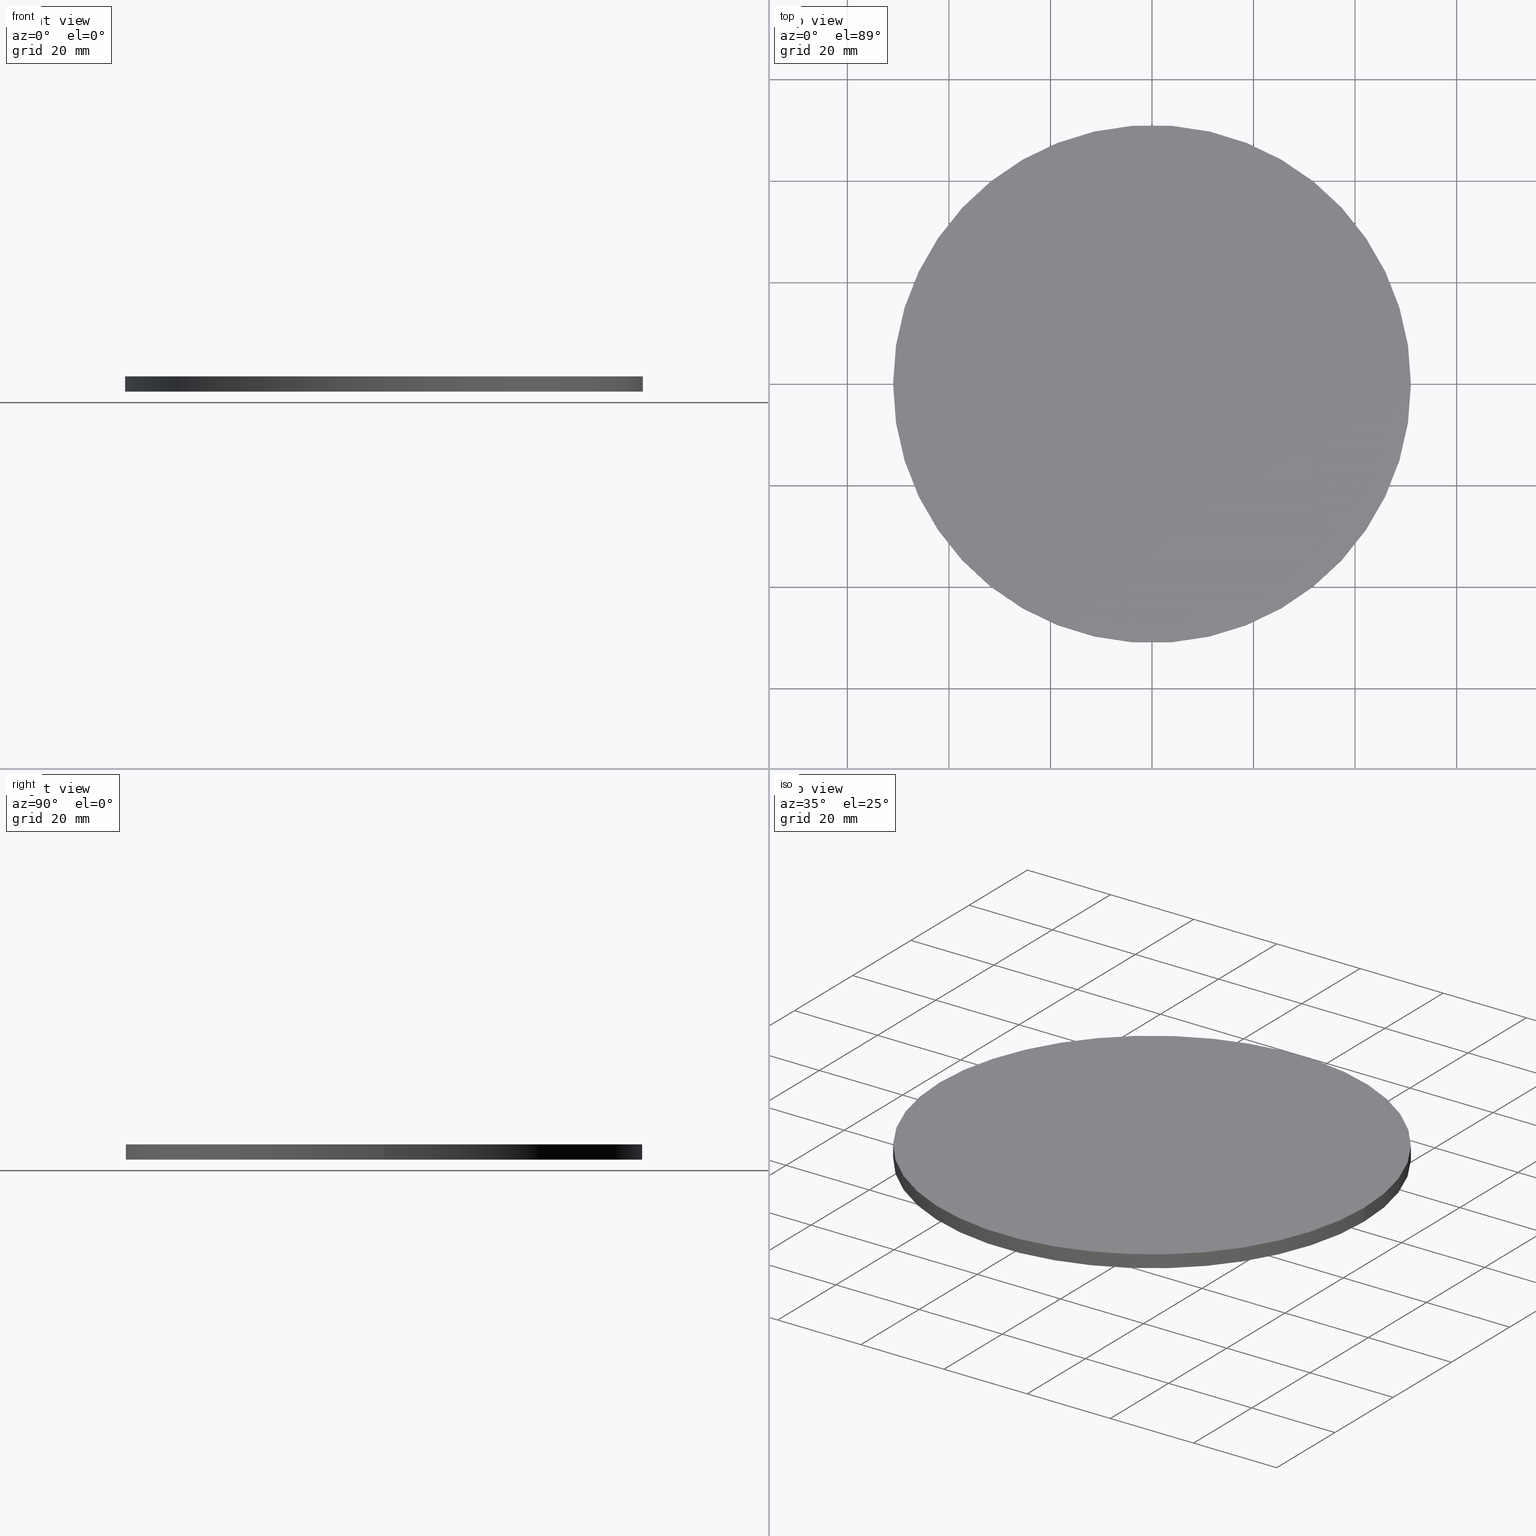
[diagram: canonical four-view strip — front | top / right | iso, engineering-drawing reading convention]
A machine part, canonical four-view strip (front | top / right | iso — engineering-drawing reading convention). The complete STEP part file that produces these views, byte-faithful:
ISO-10303-21;
HEADER;
/* Generated by software containing ST-Developer
 * from STEP Tools, Inc. (www.steptools.com) 
 */

FILE_DESCRIPTION(
/* description */ ('ACC.PIEDE'),
/* implementation_level */ '2;1');

FILE_NAME(
/* name */ 
'C:\\Users\\tecnico7\\Desktop\\NUOVI DISEGNI 3D\\CPDAA0000012.stp',
/* time_stamp */ '2022-11-22T15:31:47+01:00',
/* author */ ('tecnico7'),
/* organization */ (''),
/* preprocessor_version */ 'ST-DEVELOPER v18.1',
/* originating_system */ 'Autodesk Inventor 2022',
/* authorisation */ '');

FILE_SCHEMA (('AUTOMOTIVE_DESIGN { 1 0 10303 214 3 1 1 }'));
ENDSEC;

DATA;
#10=MECHANICAL_DESIGN_GEOMETRIC_PRESENTATION_REPRESENTATION('',(#13),#95);
#11=SHAPE_REPRESENTATION_RELATIONSHIP('SRR','None',#102,#12);
#12=ADVANCED_BREP_SHAPE_REPRESENTATION('',(#14),#94);
#13=STYLED_ITEM('',(#111),#14);
#14=MANIFOLD_SOLID_BREP('Solido1',#42);
#15=PLANE('',#68);
#16=PLANE('',#69);
#17=FACE_OUTER_BOUND('',#20,.T.);
#18=FACE_OUTER_BOUND('',#21,.T.);
#19=FACE_OUTER_BOUND('',#22,.T.);
#20=EDGE_LOOP('',(#32,#33,#34,#35));
#21=EDGE_LOOP('',(#36));
#22=EDGE_LOOP('',(#37));
#23=LINE('',#88,#24);
#24=VECTOR('',#76,51.);
#25=CIRCLE('',#66,51.);
#26=CIRCLE('',#67,51.);
#27=VERTEX_POINT('',#85);
#28=VERTEX_POINT('',#87);
#29=EDGE_CURVE('',#27,#27,#25,.T.);
#30=EDGE_CURVE('',#27,#28,#23,.T.);
#31=EDGE_CURVE('',#28,#28,#26,.T.);
#32=ORIENTED_EDGE('',*,*,#29,.F.);
#33=ORIENTED_EDGE('',*,*,#30,.T.);
#34=ORIENTED_EDGE('',*,*,#31,.F.);
#35=ORIENTED_EDGE('',*,*,#30,.F.);
#36=ORIENTED_EDGE('',*,*,#31,.T.);
#37=ORIENTED_EDGE('',*,*,#29,.T.);
#38=CYLINDRICAL_SURFACE('',#65,51.);
#39=ADVANCED_FACE('',(#17),#38,.T.);
#40=ADVANCED_FACE('',(#18),#15,.F.);
#41=ADVANCED_FACE('',(#19),#16,.T.);
#42=CLOSED_SHELL('',(#39,#40,#41));
#43=DERIVED_UNIT_ELEMENT(#46,1.);
#44=DERIVED_UNIT_ELEMENT(#97,-3.);
#45=DIMENSIONAL_EXPONENTS(1.,0.,0.,0.,0.,0.,0.);
#46=(
CONVERSION_BASED_UNIT('gram',#48)
MASS_UNIT()
NAMED_UNIT(#45)
);
#47=(
MASS_UNIT()
NAMED_UNIT(*)
SI_UNIT(.KILO.,.GRAM.)
);
#48=MASS_MEASURE_WITH_UNIT(MASS_MEASURE(0.001),#47);
#49=DERIVED_UNIT((#43,#44));
#50=MEASURE_REPRESENTATION_ITEM('density measure',
POSITIVE_RATIO_MEASURE(1.),#49);
#51=PROPERTY_DEFINITION_REPRESENTATION(#56,#53);
#52=PROPERTY_DEFINITION_REPRESENTATION(#57,#54);
#53=REPRESENTATION('material name',(#55),#94);
#54=REPRESENTATION('density',(#50),#94);
#55=DESCRIPTIVE_REPRESENTATION_ITEM('Generico','Generico');
#56=PROPERTY_DEFINITION('material property','material name',#104);
#57=PROPERTY_DEFINITION('material property','density of part',#104);
#58=DATE_TIME_ROLE('creation_date');
#59=APPLIED_DATE_AND_TIME_ASSIGNMENT(#60,#58,(#104));
#60=DATE_AND_TIME(#61,#62);
#61=CALENDAR_DATE(2015,25,11);
#62=LOCAL_TIME(0,0,0.,#63);
#63=COORDINATED_UNIVERSAL_TIME_OFFSET(0,0,.BEHIND.);
#64=AXIS2_PLACEMENT_3D('placement',#83,#70,#71);
#65=AXIS2_PLACEMENT_3D('',#84,#72,#73);
#66=AXIS2_PLACEMENT_3D('',#86,#74,#75);
#67=AXIS2_PLACEMENT_3D('',#89,#77,#78);
#68=AXIS2_PLACEMENT_3D('',#90,#79,#80);
#69=AXIS2_PLACEMENT_3D('',#91,#81,#82);
#70=DIRECTION('axis',(0.,0.,1.));
#71=DIRECTION('refdir',(1.,0.,0.));
#72=DIRECTION('center_axis',(0.,0.,1.));
#73=DIRECTION('ref_axis',(-1.,0.,0.));
#74=DIRECTION('center_axis',(0.,0.,1.));
#75=DIRECTION('ref_axis',(-1.,0.,0.));
#76=DIRECTION('',(0.,0.,-1.));
#77=DIRECTION('center_axis',(0.,0.,-1.));
#78=DIRECTION('ref_axis',(-1.,0.,0.));
#79=DIRECTION('center_axis',(0.,0.,1.));
#80=DIRECTION('ref_axis',(1.,0.,0.));
#81=DIRECTION('center_axis',(0.,0.,1.));
#82=DIRECTION('ref_axis',(1.,0.,0.));
#83=CARTESIAN_POINT('',(0.,0.,0.));
#84=CARTESIAN_POINT('Origin',(0.,0.,0.));
#85=CARTESIAN_POINT('',(51.,6.2456986756515E-15,3.));
#86=CARTESIAN_POINT('Origin',(0.,0.,3.));
#87=CARTESIAN_POINT('',(51.,6.2456986756515E-15,0.));
#88=CARTESIAN_POINT('',(51.,6.2456986756515E-15,0.));
#89=CARTESIAN_POINT('Origin',(0.,0.,0.));
#90=CARTESIAN_POINT('Origin',(-2.84250997382096E-15,1.16101754209167E-15,
0.));
#91=CARTESIAN_POINT('Origin',(-2.84250997382096E-15,1.16101754209167E-15,
3.));
#92=UNCERTAINTY_MEASURE_WITH_UNIT(LENGTH_MEASURE(0.01),#96,
'DISTANCE_ACCURACY_VALUE',
'Maximum model space distance between geometric entities at asserted c
onnectivities');
#93=UNCERTAINTY_MEASURE_WITH_UNIT(LENGTH_MEASURE(0.01),#96,
'DISTANCE_ACCURACY_VALUE',
'Maximum model space distance between geometric entities at asserted c
onnectivities');
#94=(
GEOMETRIC_REPRESENTATION_CONTEXT(3)
GLOBAL_UNCERTAINTY_ASSIGNED_CONTEXT((#92))
GLOBAL_UNIT_ASSIGNED_CONTEXT((#96,#98,#99))
REPRESENTATION_CONTEXT('','3D')
);
#95=(
GEOMETRIC_REPRESENTATION_CONTEXT(3)
GLOBAL_UNCERTAINTY_ASSIGNED_CONTEXT((#93))
GLOBAL_UNIT_ASSIGNED_CONTEXT((#96,#98,#99))
REPRESENTATION_CONTEXT('','3D')
);
#96=(
LENGTH_UNIT()
NAMED_UNIT(*)
SI_UNIT(.MILLI.,.METRE.)
);
#97=(
LENGTH_UNIT()
NAMED_UNIT(*)
SI_UNIT(.CENTI.,.METRE.)
);
#98=(
NAMED_UNIT(*)
PLANE_ANGLE_UNIT()
SI_UNIT($,.RADIAN.)
);
#99=(
NAMED_UNIT(*)
SI_UNIT($,.STERADIAN.)
SOLID_ANGLE_UNIT()
);
#100=SHAPE_DEFINITION_REPRESENTATION(#101,#102);
#101=PRODUCT_DEFINITION_SHAPE('',$,#104);
#102=SHAPE_REPRESENTATION('',(#64),#94);
#103=PRODUCT_DEFINITION_CONTEXT('part definition',#108,'design');
#104=PRODUCT_DEFINITION('CPDAA0000012','CPDAA0000012',#105,#103);
#105=PRODUCT_DEFINITION_FORMATION('A',$,#110);
#106=PRODUCT_RELATED_PRODUCT_CATEGORY('CPDAA0000012','CPDAA0000012',(#110));
#107=APPLICATION_PROTOCOL_DEFINITION('international standard',
'automotive_design',2009,#108);
#108=APPLICATION_CONTEXT(
'Core Data for Automotive Mechanical Design Process');
#109=PRODUCT_CONTEXT('part definition',#108,'mechanical');
#110=PRODUCT('CPDAA0000012','CPDAA0000012','ACC.PIEDE',(#109));
#111=PRESENTATION_STYLE_ASSIGNMENT((#112));
#112=SURFACE_STYLE_USAGE(.BOTH.,#115);
#113=SURFACE_STYLE_RENDERING_WITH_PROPERTIES($,#119,(#114));
#114=SURFACE_STYLE_TRANSPARENT(0.);
#115=SURFACE_SIDE_STYLE('',(#116,#113));
#116=SURFACE_STYLE_FILL_AREA(#117);
#117=FILL_AREA_STYLE('',(#118));
#118=FILL_AREA_STYLE_COLOUR('',#119);
#119=COLOUR_RGB('',0.16078431372549,0.16078431372549,0.16078431372549);
ENDSEC;
END-ISO-10303-21;
